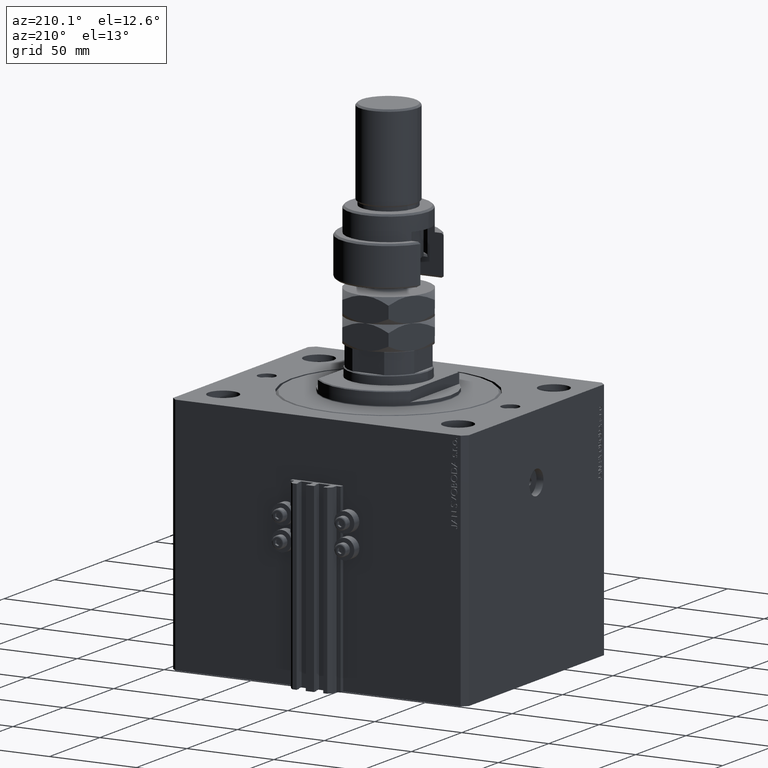
[diagram: clean part render]
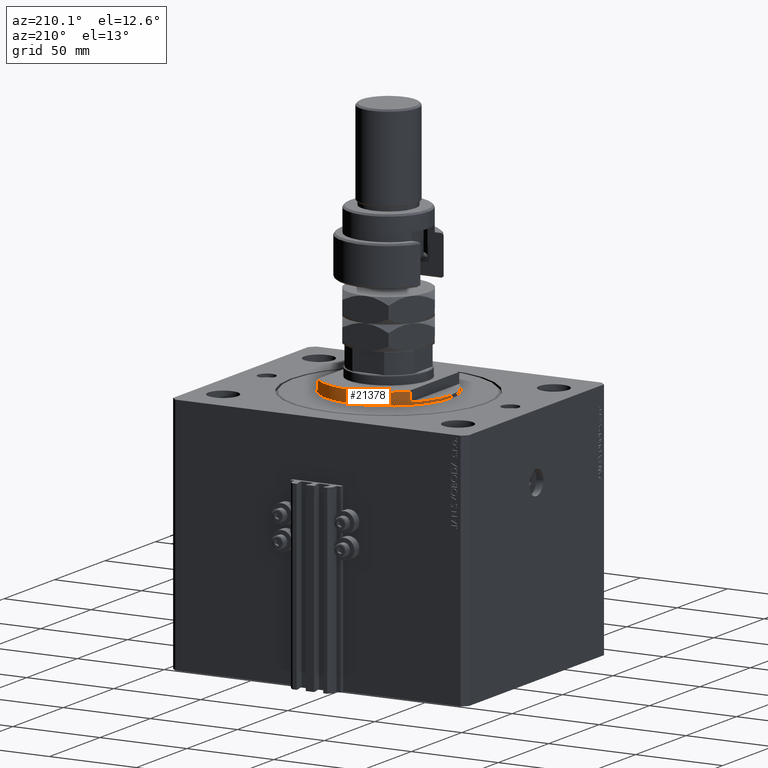
[diagram: same view with one face highlighted and labeled with its STEP entity id]
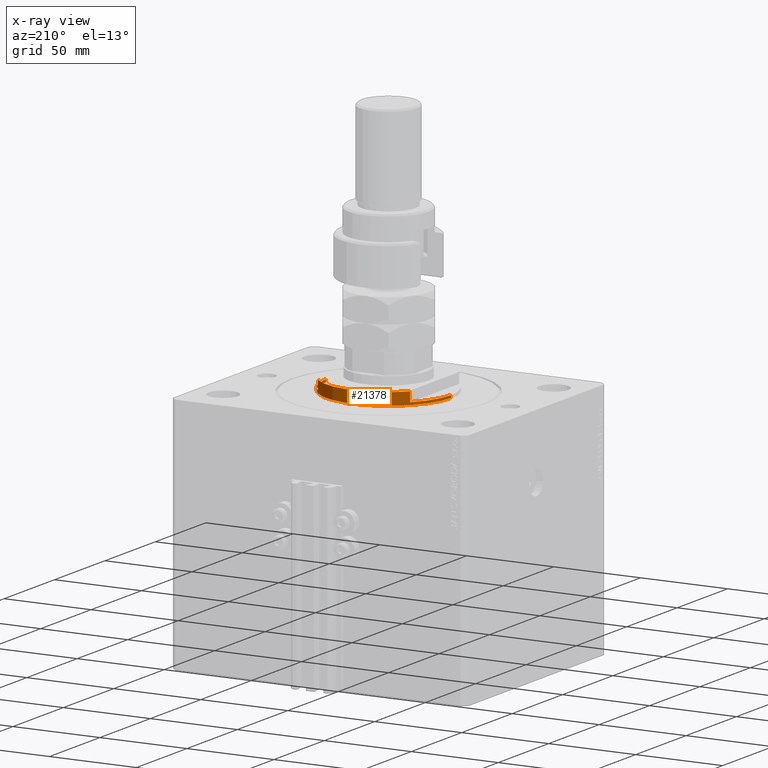
[diagram: x-ray of the same camera — body ghosted, the highlighted face saturated]
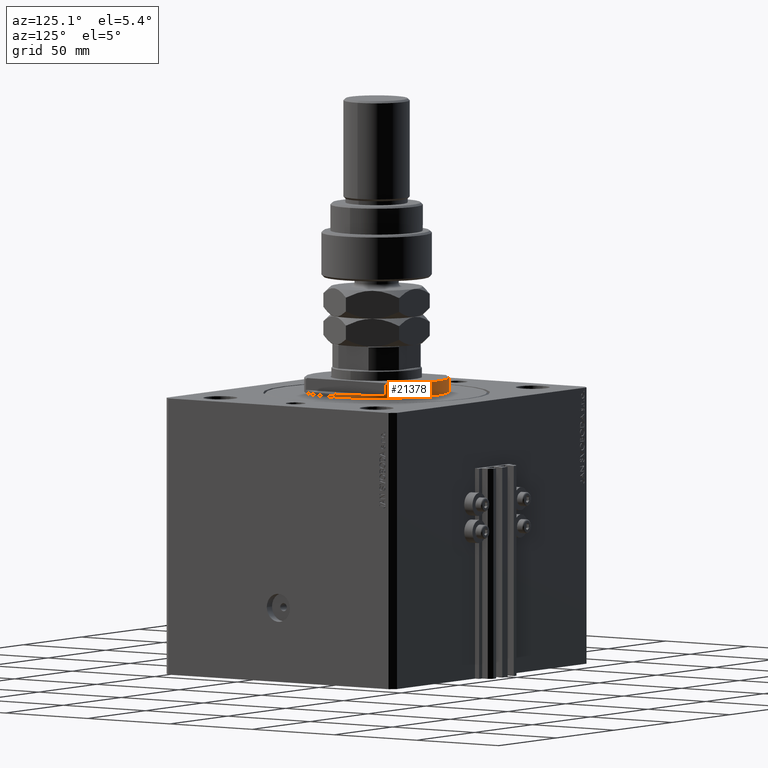
[diagram: same view with one face highlighted and labeled with its STEP entity id]
A machine part, auxiliary view. The second image highlights one B-rep face of the part: STEP entity #21378.
The next image is the same camera in x-ray: the body ghosted, the highlighted face saturated — about 0% of this face is hidden behind the body in this view.
A second angle (auxiliary view) of the same face is appended — the face is thin or edge-on in the first view.
In plain terms, the highlighted cylindrical surface (partial cylindrical patch) has radius 36 mm, axis along (0, 0, -1).
Its self-contained STEP definition (entity closure, byte-faithful):
#1196 = DIRECTION ( 'NONE',  ( 1.000000000000000000, 0.000000000000000000, 0.000000000000000000 ) ) ;
#1235 = LINE ( 'NONE', #32682, #15591 ) ;
#1993 = DIRECTION ( 'NONE',  ( 0.000000000000000000, 0.000000000000000000, -1.000000000000000000 ) ) ;
#2885 = VERTEX_POINT ( 'NONE', #4805 ) ;
#3481 = VERTEX_POINT ( 'NONE', #44985 ) ;
#3542 = CARTESIAN_POINT ( 'NONE',  ( 26.50000000000000000, 24.36698586202240691, -2.000000000000000000 ) ) ;
#4805 = CARTESIAN_POINT ( 'NONE',  ( -36.00000000000000000, 4.408728476930470856E-15, -2.000000000000000000 ) ) ;
#5608 = EDGE_CURVE ( 'NONE', #47468, #10060, #1235, .T. ) ;
#6268 = ORIENTED_EDGE ( 'NONE', *, *, #19816, .F. ) ;
#6684 = CARTESIAN_POINT ( 'NONE',  ( 0.000000000000000000, 0.000000000000000000, -8.000000000000000000 ) ) ;
#6866 = LINE ( 'NONE', #13463, #10315 ) ;
#8772 = CIRCLE ( 'NONE', #21727, 36.00000000000000000 ) ;
#8795 = AXIS2_PLACEMENT_3D ( 'NONE', #18555, #34056, #49494 ) ;
#9514 = ORIENTED_EDGE ( 'NONE', *, *, #20779, .T. ) ;
#9919 = ORIENTED_EDGE ( 'NONE', *, *, #24419, .T. ) ;
#10060 = VERTEX_POINT ( 'NONE', #3542 ) ;
#10315 = VECTOR ( 'NONE', #44664, 1000.000000000000000 ) ;
#12071 = CARTESIAN_POINT ( 'NONE',  ( 0.000000000000000000, 0.000000000000000000, -7.499999999999965361 ) ) ;
#13463 = CARTESIAN_POINT ( 'NONE',  ( -26.50000000000000000, 24.36698586202240691, -8.000000000000000000 ) ) ;
#13929 = LINE ( 'NONE', #14176, #17796 ) ;
#14176 = CARTESIAN_POINT ( 'NONE',  ( -36.00000000000000000, 4.408728476930470856E-15, -8.000000000000000000 ) ) ;
#14673 = DIRECTION ( 'NONE',  ( -0.000000000000000000, -0.000000000000000000, 1.000000000000000000 ) ) ;
#14709 = CARTESIAN_POINT ( 'NONE',  ( -26.50000000000000000, 24.36698586202240691, -2.000000000000000000 ) ) ;
#15381 = DIRECTION ( 'NONE',  ( -1.000000000000000000, 0.000000000000000000, 0.000000000000000000 ) ) ;
#15591 = VECTOR ( 'NONE', #29363, 1000.000000000000000 ) ;
#17185 = EDGE_CURVE ( 'NONE', #2885, #44760, #8772, .T. ) ;
#17214 = VERTEX_POINT ( 'NONE', #25313 ) ;
#17796 = VECTOR ( 'NONE', #14673, 1000.000000000000000 ) ;
#18555 = CARTESIAN_POINT ( 'NONE',  ( 0.000000000000000000, 0.000000000000000000, -2.000000000000000000 ) ) ;
#18774 = AXIS2_PLACEMENT_3D ( 'NONE', #6684, #45482, #37644 ) ;
#19258 = ORIENTED_EDGE ( 'NONE', *, *, #22185, .F. ) ;
#19816 = EDGE_CURVE ( 'NONE', #17214, #3481, #36200, .T. ) ;
#19954 = DIRECTION ( 'NONE',  ( -0.000000000000000000, -0.000000000000000000, 1.000000000000000000 ) ) ;
#20779 = EDGE_CURVE ( 'NONE', #30671, #3481, #36573, .T. ) ;
#20824 = ORIENTED_EDGE ( 'NONE', *, *, #5608, .F. ) ;
#21021 = AXIS2_PLACEMENT_3D ( 'NONE', #12071, #34699, #15381 ) ;
#21378 = ADVANCED_FACE ( 'NONE', ( #41443 ), #49282, .T. ) ;
#21727 = AXIS2_PLACEMENT_3D ( 'NONE', #44589, #1993, #24571 ) ;
#22185 = EDGE_CURVE ( 'NONE', #10060, #17214, #25812, .T. ) ;
#23235 = EDGE_LOOP ( 'NONE', ( #40382, #9919, #9514, #6268, #19258, #20824, #43978, #41382 ) ) ;
#24419 = EDGE_CURVE ( 'NONE', #2885, #30671, #13929, .T. ) ;
#24571 = DIRECTION ( 'NONE',  ( -1.000000000000000000, 0.000000000000000000, 0.000000000000000000 ) ) ;
#25313 = CARTESIAN_POINT ( 'NONE',  ( 36.00000000000000000, 0.000000000000000000, -2.000000000000000000 ) ) ;
#25812 = CIRCLE ( 'NONE', #8795, 36.00000000000000000 ) ;
#28360 = CARTESIAN_POINT ( 'NONE',  ( -26.50000000000000000, 24.36698586202241046, -7.499999999999968026 ) ) ;
#29251 = AXIS2_PLACEMENT_3D ( 'NONE', #32138, #39511, #1196 ) ;
#29363 = DIRECTION ( 'NONE',  ( -0.000000000000000000, -0.000000000000000000, 1.000000000000000000 ) ) ;
#30671 = VERTEX_POINT ( 'NONE', #34783 ) ;
#32138 = CARTESIAN_POINT ( 'NONE',  ( 0.000000000000000000, 0.000000000000000000, -0.5000000000000004441 ) ) ;
#32682 = CARTESIAN_POINT ( 'NONE',  ( 26.50000000000000000, 24.36698586202240691, -8.000000000000000000 ) ) ;
#34056 = DIRECTION ( 'NONE',  ( 0.000000000000000000, 0.000000000000000000, -1.000000000000000000 ) ) ;
#34497 = CARTESIAN_POINT ( 'NONE',  ( 26.50000000000000000, 24.36698586202241046, -7.499999999999968026 ) ) ;
#34699 = DIRECTION ( 'NONE',  ( 0.000000000000000000, 0.000000000000000000, 1.000000000000000000 ) ) ;
#34783 = CARTESIAN_POINT ( 'NONE',  ( -36.00000000000000000, 4.408728476930470856E-15, -0.5000000000000004441 ) ) ;
#36200 = LINE ( 'NONE', #43043, #47017 ) ;
#36573 = CIRCLE ( 'NONE', #29251, 36.00000000000000000 ) ;
#37644 = DIRECTION ( 'NONE',  ( 1.000000000000000000, 0.000000000000000000, 0.000000000000000000 ) ) ;
#39511 = DIRECTION ( 'NONE',  ( -0.000000000000000000, -0.000000000000000000, -1.000000000000000000 ) ) ;
#40382 = ORIENTED_EDGE ( 'NONE', *, *, #17185, .F. ) ;
#41382 = ORIENTED_EDGE ( 'NONE', *, *, #44613, .T. ) ;
#41443 = FACE_OUTER_BOUND ( 'NONE', #23235, .T. ) ;
#42899 = CIRCLE ( 'NONE', #21021, 36.00000000000000000 ) ;
#43043 = CARTESIAN_POINT ( 'NONE',  ( 36.00000000000000000, 0.000000000000000000, -8.000000000000000000 ) ) ;
#43978 = ORIENTED_EDGE ( 'NONE', *, *, #50162, .T. ) ;
#44589 = CARTESIAN_POINT ( 'NONE',  ( 0.000000000000000000, 0.000000000000000000, -2.000000000000000000 ) ) ;
#44613 = EDGE_CURVE ( 'NONE', #47527, #44760, #6866, .T. ) ;
#44664 = DIRECTION ( 'NONE',  ( -0.000000000000000000, -0.000000000000000000, 1.000000000000000000 ) ) ;
#44760 = VERTEX_POINT ( 'NONE', #14709 ) ;
#44985 = CARTESIAN_POINT ( 'NONE',  ( 36.00000000000000000, 0.000000000000000000, -0.5000000000000004441 ) ) ;
#45482 = DIRECTION ( 'NONE',  ( -0.000000000000000000, -0.000000000000000000, 1.000000000000000000 ) ) ;
#47017 = VECTOR ( 'NONE', #19954, 1000.000000000000000 ) ;
#47468 = VERTEX_POINT ( 'NONE', #34497 ) ;
#47527 = VERTEX_POINT ( 'NONE', #28360 ) ;
#49282 = CYLINDRICAL_SURFACE ( 'NONE', #18774, 36.00000000000000000 ) ;
#49494 = DIRECTION ( 'NONE',  ( -1.000000000000000000, 0.000000000000000000, 0.000000000000000000 ) ) ;
#50162 = EDGE_CURVE ( 'NONE', #47468, #47527, #42899, .T. ) ;